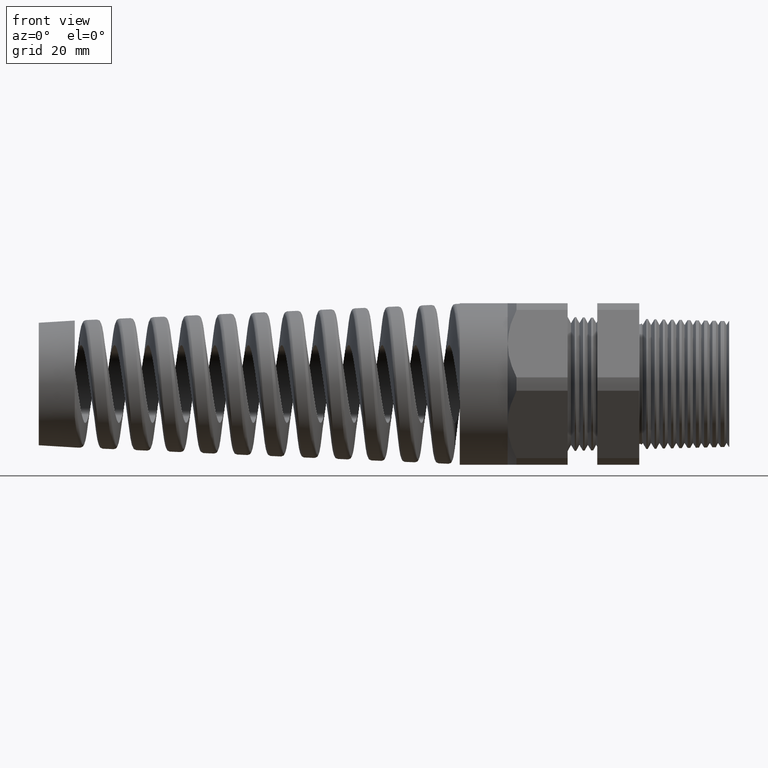
[diagram: clean part render]
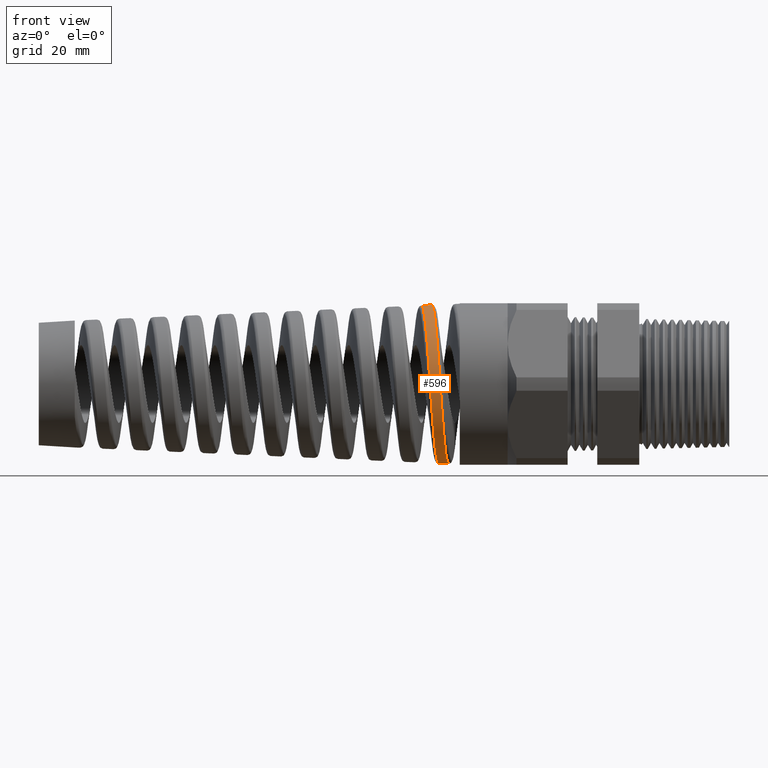
[diagram: same view with one face highlighted and labeled with its STEP entity id]
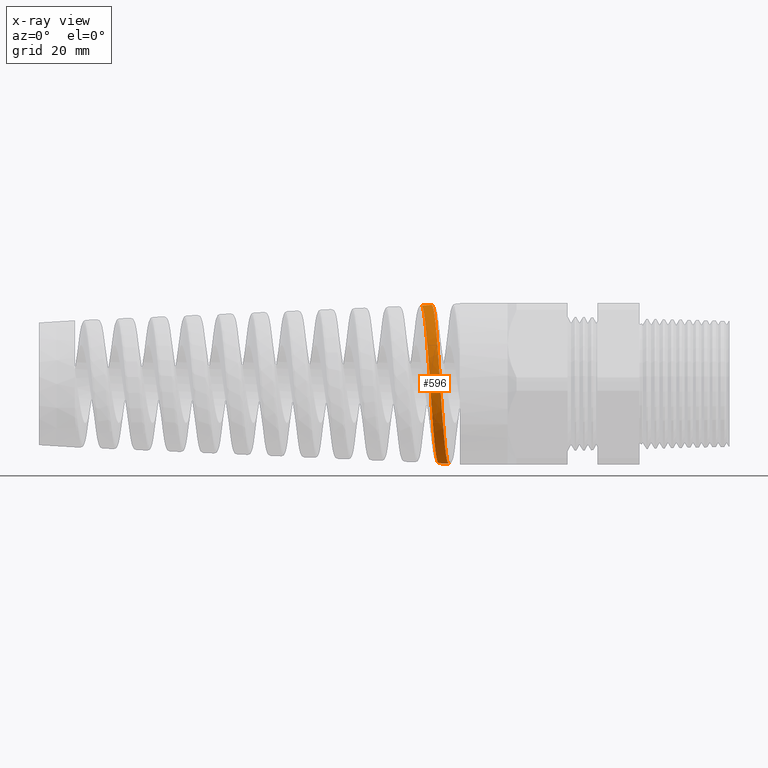
[diagram: x-ray of the same camera — body ghosted, the highlighted face saturated]
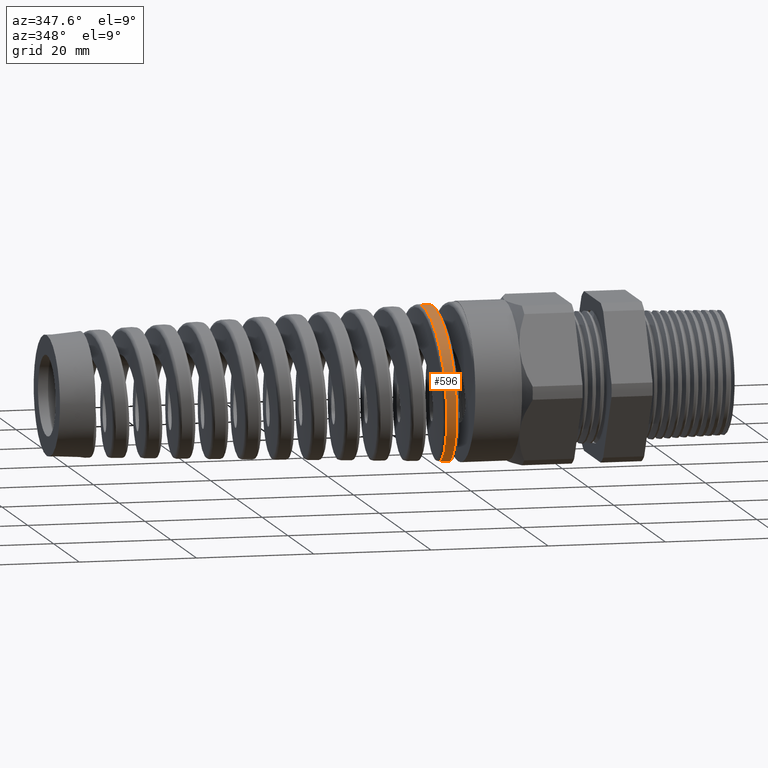
[diagram: same view with one face highlighted and labeled with its STEP entity id]
A machine part, front view. The second image highlights one B-rep face of the part: STEP entity #596.
The next image is the same camera in x-ray: the body ghosted, the highlighted face saturated — about 0% of this face is hidden behind the body in this view.
A second angle (auxiliary view) of the same face is appended — the face is thin or edge-on in the first view.
In plain terms, the highlighted conical surface has half-angle 2.5 deg.
Its self-contained STEP definition (entity closure, byte-faithful):
#589 = ORIENTED_EDGE ( 'NONE', *, *, #939, .T. ) ;
#591 = ORIENTED_EDGE ( 'NONE', *, *, #13241, .T. ) ;
#592 = EDGE_LOOP ( 'NONE', ( #595, #593, #591, #589 ) ) ;
#593 = ORIENTED_EDGE ( 'NONE', *, *, #594, .T. ) ;
#594 = EDGE_CURVE ( 'NONE', #7778, #13255, #1674, .T. ) ;
#595 = ORIENTED_EDGE ( 'NONE', *, *, #7902, .F. ) ;
#596 = ADVANCED_FACE ( 'NONE', ( #1675 ), #1700, .T. ) ;
#939 = EDGE_CURVE ( 'NONE', #13239, #6999, #17884, .T. ) ;
#1666 = CARTESIAN_POINT ( 'NONE',  ( -1.722592983473912400, -0.2139238387182114700, 0.4702579864811635700 ) ) ;
#1667 = CARTESIAN_POINT ( 'NONE',  ( -1.726037294512736700, -0.1669640885750318400, 0.4896261901162252700 ) ) ;
#1668 = CARTESIAN_POINT ( 'NONE',  ( -1.728314507461816900, -0.1346481827827056600, 0.4993850904316184400 ) ) ;
#1669 = CARTESIAN_POINT ( 'NONE',  ( -1.731777167149667100, -0.08464941721057936400, 0.5092429400751060700 ) ) ;
#1670 = CARTESIAN_POINT ( 'NONE',  ( -1.732944855199311200, -0.06764255167955547700, 0.5117288444558686400 ) ) ;
#1671 = CARTESIAN_POINT ( 'NONE',  ( -1.735260382962404700, -0.03378594452384209300, 0.5149719722363648200 ) ) ;
#1672 = CARTESIAN_POINT ( 'NONE',  ( -1.736412101383353100, -0.01688126453870676700, 0.5157485398768541000 ) ) ;
#1673 = CARTESIAN_POINT ( 'NONE',  ( -1.737562303999665900, 6.935350874948289400E-015, 0.5156983209460898100 ) ) ;
#1674 = B_SPLINE_CURVE_WITH_KNOTS ( 'NONE', 3,
 ( #1673, #1672, #1671, #1670, #1669, #1668, #1667, #1666, #1742, #1741, #1740, #1739, #1738, #1737, #1736, #1735, #1734, #1733, #1732, #1731, #1730, #1729, #1728, #1727, #1726, #1725, #1724, #1723, #1722, #1721, #1720, #1719, #1718, #1717, #1716, #1715, #1714, #1713, #1712, #1711, #1710, #1709, #1708, #1707, #1706, #1705, #1704, #1703 ),
 .UNSPECIFIED., .F., .F.,
 ( 4, 2, 2, 2, 2, 2, 2, 2, 2, 2, 2, 2, 2, 2, 2, 2, 2, 2, 2, 2, 2, 2, 2, 4 ),
 ( 0.7784240230110518500, 0.7797336503931809900, 0.7810432777753101300, 0.7836625325395684100, 0.7849721599216975500, 0.7862817873038267000, 0.7889010420680849800, 0.7902106694502141200, 0.7915202968323433700, 0.7928299242144725100, 0.7941395515966016600, 0.7967588063608599400, 0.7980684337429890800, 0.7993780611251182200, 0.8019973158893765100, 0.8033069432715056500, 0.8046165706536349000, 0.8072358254178931800, 0.8098550801821514700, 0.8111647075642806100, 0.8124743349464097500, 0.8150935897106681400, 0.8177128444749264300, 0.8203320992391847100 ),
 .UNSPECIFIED. ) ;
#1675 = FACE_OUTER_BOUND ( 'NONE', #592, .T. ) ;
#1696 = DIRECTION ( 'NONE',  ( 0.0000000000000000000, 0.0000000000000000000, -1.000000000000000000 ) ) ;
#1697 = DIRECTION ( 'NONE',  ( 1.000000000000000000, 0.0000000000000000000, 0.0000000000000000000 ) ) ;
#1698 = CARTESIAN_POINT ( 'NONE',  ( -1.409999999999999900, 0.0000000000000000000, 0.0000000000000000000 ) ) ;
#1699 = AXIS2_PLACEMENT_3D ( 'NONE', #1698, #1697, #1696 ) ;
#1700 = CONICAL_SURFACE ( 'NONE', #1699, 0.5299999999999999200, 0.04363323129985856300 ) ;
#1703 = CARTESIAN_POINT ( 'NONE',  ( -1.627386131749928100, 1.563865524316762000E-015, -0.5205087165125640300 ) ) ;
#1704 = CARTESIAN_POINT ( 'NONE',  ( -1.629676230863093900, -0.03402098196167265700, -0.5204087286259292400 ) ) ;
#1705 = CARTESIAN_POINT ( 'NONE',  ( -1.631943346546171000, -0.06761373352152706700, -0.5170058175692035000 ) ) ;
#1706 = CARTESIAN_POINT ( 'NONE',  ( -1.636513464939096000, -0.1339512655651189100, -0.5037023822791564200 ) ) ;
#1707 = CARTESIAN_POINT ( 'NONE',  ( -1.638833431703864600, -0.1669629965965004300, -0.4936373535988004000 ) ) ;
#1708 = CARTESIAN_POINT ( 'NONE',  ( -1.643392373716870500, -0.2294573033151903200, -0.4676503517703482500 ) ) ;
#1709 = CARTESIAN_POINT ( 'NONE',  ( -1.645653415508865300, -0.2592275384750709600, -0.4517265914706220000 ) ) ;
#1710 = CARTESIAN_POINT ( 'NONE',  ( -1.649092895533213100, -0.3016296480462324300, -0.4233818652329591200 ) ) ;
#1711 = CARTESIAN_POINT ( 'NONE',  ( -1.650251737673882100, -0.3154312099483523900, -0.4131378782356932000 ) ) ;
#1712 = CARTESIAN_POINT ( 'NONE',  ( -1.652548079228678000, -0.3416898479354515400, -0.3915656264741095800 ) ) ;
#1713 = CARTESIAN_POINT ( 'NONE',  ( -1.653690845984876000, -0.3542157095904564500, -0.3801988423909226600 ) ) ;
#1714 = CARTESIAN_POINT ( 'NONE',  ( -1.657117121693942400, -0.3900177325240377600, -0.3443913176565637200 ) ) ;
#1715 = CARTESIAN_POINT ( 'NONE',  ( -1.659401170423145500, -0.4115808137773185300, -0.3181927308551297200 ) ) ;
#1716 = CARTESIAN_POINT ( 'NONE',  ( -1.664015301422366000, -0.4495955141188238700, -0.2613429492694502900 ) ) ;
#1717 = CARTESIAN_POINT ( 'NONE',  ( -1.666284102801327100, -0.4655193565567151700, -0.2315089916569136000 ) ) ;
#1718 = CARTESIAN_POINT ( 'NONE',  ( -1.669706484254078700, -0.4849442630160236700, -0.1847251428075126500 ) ) ;
#1719 = CARTESIAN_POINT ( 'NONE',  ( -1.670850286952198600, -0.4906703514680056400, -0.1687892292516941800 ) ) ;
#1720 = CARTESIAN_POINT ( 'NONE',  ( -1.673155153866892500, -0.5005870232670369700, -0.1362184332856884200 ) ) ;
#1721 = CARTESIAN_POINT ( 'NONE',  ( -1.674317672832473100, -0.5047710309584833000, -0.1195602275153976600 ) ) ;
#1722 = CARTESIAN_POINT ( 'NONE',  ( -1.677768922143178900, -0.5147312324925317200, -0.06962830771451104800 ) ) ;
#1723 = CARTESIAN_POINT ( 'NONE',  ( -1.680044127117704200, -0.5180641475945252400, -0.03604009421066983000 ) ) ;
#1724 = CARTESIAN_POINT ( 'NONE',  ( -1.683479017987300300, -0.5181256565375845800, 0.01478642091440800200 ) ) ;
#1725 = CARTESIAN_POINT ( 'NONE',  ( -1.684633676613909400, -0.5173089205460761300, 0.03188020995763349300 ) ) ;
#1726 = CARTESIAN_POINT ( 'NONE',  ( -1.686940716142296200, -0.5139881738855099900, 0.06585346416918858000 ) ) ;
#1727 = CARTESIAN_POINT ( 'NONE',  ( -1.688086255710673100, -0.5115026394682251600, 0.08263186204734542000 ) ) ;
#1728 = CARTESIAN_POINT ( 'NONE',  ( -1.691517737676643300, -0.5016428050784782500, 0.1323593294096142000 ) ) ;
#1729 = CARTESIAN_POINT ( 'NONE',  ( -1.693799080911002400, -0.4918881041078065300, 0.1647064115569146500 ) ) ;
#1730 = CARTESIAN_POINT ( 'NONE',  ( -1.697272492698430200, -0.4723519027608122900, 0.2119825337475498800 ) ) ;
#1731 = CARTESIAN_POINT ( 'NONE',  ( -1.698435192405543000, -0.4650268841669020800, 0.2274796680844092500 ) ) ;
#1732 = CARTESIAN_POINT ( 'NONE',  ( -1.700734235806596400, -0.4490510917921451400, 0.2573834814440284500 ) ) ;
#1733 = CARTESIAN_POINT ( 'NONE',  ( -1.701876711208885700, -0.4403672487264463900, 0.2718743325484428400 ) ) ;
#1734 = CARTESIAN_POINT ( 'NONE',  ( -1.704161461104001900, -0.4216262606397833700, 0.2999451209900673200 ) ) ;
#1735 = CARTESIAN_POINT ( 'NONE',  ( -1.705303621857871700, -0.4115691237540737300, 0.3135250730148672600 ) ) ;
#1736 = CARTESIAN_POINT ( 'NONE',  ( -1.707600536157857900, -0.3900604985709306100, 0.3397590557809860300 ) ) ;
#1737 = CARTESIAN_POINT ( 'NONE',  ( -1.708761791125533500, -0.3785392553858045200, 0.3524791616650036500 ) ) ;
#1738 = CARTESIAN_POINT ( 'NONE',  ( -1.712227934749914100, -0.3423889314343729300, 0.3886098992227271500 ) ) ;
#1739 = CARTESIAN_POINT ( 'NONE',  ( -1.714513206431566900, -0.3162560191602098400, 0.4100108338846432100 ) ) ;
#1740 = CARTESIAN_POINT ( 'NONE',  ( -1.717962681895850900, -0.2740796451434017200, 0.4381714325051962500 ) ) ;
#1741 = CARTESIAN_POINT ( 'NONE',  ( -1.719115837775997000, -0.2595211334095421900, 0.4468968279397476700 ) ) ;
#1742 = CARTESIAN_POINT ( 'NONE',  ( -1.721436267604481700, -0.2293724656432885600, 0.4629812302570673900 ) ) ;
#5913 = CARTESIAN_POINT ( 'NONE',  ( -1.671487147655367700, -9.009907678674996900E-013, 0.5185832245749092400 ) ) ;
#6160 = CARTESIAN_POINT ( 'NONE',  ( -1.561664174598572700, 9.210666006910000400E-013, -0.5233781991315850100 ) ) ;
#6224 = DIRECTION ( 'NONE',  ( 0.9990482215818576900, 0.0000000000000000000, -0.04361938736533632600 ) ) ;
#6225 = VECTOR ( 'NONE', #6224, 39.37007874015748100 ) ;
#6226 = CARTESIAN_POINT ( 'NONE',  ( -1.409999999999999900, 0.0000000000000000000, -0.5299999999999999200 ) ) ;
#6227 = LINE ( 'NONE', #6226, #6225 ) ;
#6319 = CARTESIAN_POINT ( 'NONE',  ( -1.627386131749928100, 1.563865524316762000E-015, -0.5205087165125640300 ) ) ;
#6999 = VERTEX_POINT ( 'NONE', #5913 ) ;
#7778 = VERTEX_POINT ( 'NONE', #18245 ) ;
#7902 = EDGE_CURVE ( 'NONE', #7778, #6999, #18243, .T. ) ;
#13239 = VERTEX_POINT ( 'NONE', #6160 ) ;
#13241 = EDGE_CURVE ( 'NONE', #13255, #13239, #6227, .T. ) ;
#13255 = VERTEX_POINT ( 'NONE', #6319 ) ;
#17874 = CARTESIAN_POINT ( 'NONE',  ( -1.583303273194142800, -0.3032868684319640600, -0.4257280723663478500 ) ) ;
#17875 = CARTESIAN_POINT ( 'NONE',  ( -1.579886071247810700, -0.2607683709670982100, -0.4541530738246232800 ) ) ;
#17876 = CARTESIAN_POINT ( 'NONE',  ( -1.577626773677712500, -0.2308525849585015300, -0.4701759477456272100 ) ) ;
#17877 = CARTESIAN_POINT ( 'NONE',  ( -1.574200667460258000, -0.1836287305869543400, -0.4898196005918008500 ) ) ;
#17878 = CARTESIAN_POINT ( 'NONE',  ( -1.573046363620578300, -0.1674029878024393700, -0.4956558929616343700 ) ) ;
#17879 = CARTESIAN_POINT ( 'NONE',  ( -1.570750320246621800, -0.1346150568517882300, -0.5056502309508792400 ) ) ;
#17880 = CARTESIAN_POINT ( 'NONE',  ( -1.569611219953883000, -0.1180901721828888500, -0.5098086198773257300 ) ) ;
#17881 = CARTESIAN_POINT ( 'NONE',  ( -1.566207420537376600, -0.06813419722391637900, -0.5198352621724925400 ) ) ;
#17882 = CARTESIAN_POINT ( 'NONE',  ( -1.563953830797420300, -0.03432555894512710100, -0.5232782305830674400 ) ) ;
#17883 = CARTESIAN_POINT ( 'NONE',  ( -1.561664174598572700, 9.210666006910000400E-013, -0.5233781991315850100 ) ) ;
#17884 = B_SPLINE_CURVE_WITH_KNOTS ( 'NONE', 3,
 ( #17883, #17882, #17881, #17880, #17879, #17878, #17877, #17876, #17875, #17874, #17943, #17942, #17941, #17940, #17939, #17938, #17937, #17936, #17935, #17934, #17933, #17932, #17931, #17930, #17929, #17928, #17927, #17926, #17925, #17924, #17923, #17922, #17921, #17920, #17919, #17918, #17917, #17916, #17915, #17914, #17913, #17912, #17911, #17910, #17909, #17908, #17907, #17906, #17905 ),
 .UNSPECIFIED., .F., .F.,
 ( 4, 2, 2, 2, 2, 2, 2, 2, 2, 1, 2, 2, 2, 2, 2, 2, 2, 2, 2, 2, 2, 2, 2, 2, 4 ),
 ( 0.02840593383123696200, 0.03103339947261080800, 0.03234713229329773400, 0.03366086511398465300, 0.03628833075535850500, 0.03760206357604542500, 0.03891579639673235800, 0.04154326203810621000, 0.04285699485879312900, 0.04417072767948004900, 0.04548446050016696800, 0.04679819332085390100, 0.04942565896222773900, 0.05073939178291466500, 0.05205312460360158500, 0.05468059024497544400, 0.05599432306566236300, 0.05730805588634928200, 0.05993552152772312800, 0.06256298716909697300, 0.06387671998978389200, 0.06519045281047081100, 0.06781791845184465000, 0.06913165127253156900, 0.07044538409321847400 ),
 .UNSPECIFIED. ) ;
#17905 = CARTESIAN_POINT ( 'NONE',  ( -1.671487147655367700, -9.009907678674996900E-013, 0.5185832245749092400 ) ) ;
#17906 = CARTESIAN_POINT ( 'NONE',  ( -1.670340841219261700, -0.01698963464981139200, 0.5186332733947420800 ) ) ;
#17907 = CARTESIAN_POINT ( 'NONE',  ( -1.669193947454835600, -0.03402346255799118500, 0.5178505512999473900 ) ) ;
#17908 = CARTESIAN_POINT ( 'NONE',  ( -1.666884743637695000, -0.06818114817059993400, 0.5145704228644809600 ) ) ;
#17909 = CARTESIAN_POINT ( 'NONE',  ( -1.665728536077493600, -0.08521367151051313600, 0.5120725431249858500 ) ) ;
#17910 = CARTESIAN_POINT ( 'NONE',  ( -1.662290854050047200, -0.1353587353759280700, 0.5021794832013992700 ) ) ;
#17911 = CARTESIAN_POINT ( 'NONE',  ( -1.660017707202772900, -0.1678523019196781200, 0.4923805326020565500 ) ) ;
#17912 = CARTESIAN_POINT ( 'NONE',  ( -1.656566298065300600, -0.2151774849304916900, 0.4728578058046796800 ) ) ;
#17913 = CARTESIAN_POINT ( 'NONE',  ( -1.655402567162213000, -0.2307979229323229300, 0.4654919265060706900 ) ) ;
#17914 = CARTESIAN_POINT ( 'NONE',  ( -1.653093187880097200, -0.2609990330813905000, 0.4493713926657604300 ) ) ;
#17915 = CARTESIAN_POINT ( 'NONE',  ( -1.651946159032848400, -0.2756034297010237500, 0.4406190830484332800 ) ) ;
#17916 = CARTESIAN_POINT ( 'NONE',  ( -1.648516773939560100, -0.3179637828117275500, 0.4123369789038205400 ) ) ;
#17917 = CARTESIAN_POINT ( 'NONE',  ( -1.646246124897728000, -0.3442810317503510200, 0.3908016905532807900 ) ) ;
#17918 = CARTESIAN_POINT ( 'NONE',  ( -1.641627928410941200, -0.3929175209954619000, 0.3421707553239606300 ) ) ;
#17919 = CARTESIAN_POINT ( 'NONE',  ( -1.639347256575244700, -0.4145139536706922100, 0.3157789249159075900 ) ) ;
#17920 = CARTESIAN_POINT ( 'NONE',  ( -1.635919974664799900, -0.4427896588440889400, 0.2734354650907988000 ) ) ;
#17921 = CARTESIAN_POINT ( 'NONE',  ( -1.634775622019199100, -0.4515355735051830300, 0.2588460012208674300 ) ) ;
#17922 = CARTESIAN_POINT ( 'NONE',  ( -1.632473927479622700, -0.4676402826836147400, 0.2286979534674089500 ) ) ;
#17923 = CARTESIAN_POINT ( 'NONE',  ( -1.631311757349018800, -0.4750202044982080900, 0.2130698508011062100 ) ) ;
#17924 = CARTESIAN_POINT ( 'NONE',  ( -1.627867144999117100, -0.4945942132338703200, 0.1656868836156642200 ) ) ;
#17925 = CARTESIAN_POINT ( 'NONE',  ( -1.625604441418468300, -0.5044092048822925700, 0.1331920376751080900 ) ) ;
#17926 = CARTESIAN_POINT ( 'NONE',  ( -1.622182035000465200, -0.5143420151166860900, 0.08311327277239842500 ) ) ;
#17927 = CARTESIAN_POINT ( 'NONE',  ( -1.621034364022450300, -0.5168522396115116100, 0.06616258002554172000 ) ) ;
#17928 = CARTESIAN_POINT ( 'NONE',  ( -1.618726600809242200, -0.5201910060647542100, 0.03193743623016062600 ) ) ;
#17929 = CARTESIAN_POINT ( 'NONE',  ( -1.617581079757472600, -0.5210017566812712400, 0.01488047587397190400 ) ) ;
#17930 = CARTESIAN_POINT ( 'NONE',  ( -1.614153078319478400, -0.5209436303860411900, -0.03612804860046883000 ) ) ;
#17931 = CARTESIAN_POINT ( 'NONE',  ( -1.611878518809841700, -0.5176077161444201400, -0.06991873988405215800 ) ) ;
#17932 = CARTESIAN_POINT ( 'NONE',  ( -1.608435354919395300, -0.5075615772729852300, -0.1202727628179043600 ) ) ;
#17933 = CARTESIAN_POINT ( 'NONE',  ( -1.607280274752801200, -0.5033488374788689400, -0.1370224389131747500 ) ) ;
#17934 = CARTESIAN_POINT ( 'NONE',  ( -1.604995840460445000, -0.4934061396577446600, -0.1696749805441474200 ) ) ;
#17935 = CARTESIAN_POINT ( 'NONE',  ( -1.602724386106714900, -0.4819165859347363500, -0.2016686849367425000 ) ) ;
#17936 = CARTESIAN_POINT ( 'NONE',  ( -1.600453327087207700, -0.4673874812831539400, -0.2323659462256736600 ) ) ;
#17937 = CARTESIAN_POINT ( 'NONE',  ( -1.598170704941727300, -0.4513219817612144600, -0.2624070368999230100 ) ) ;
#17938 = CARTESIAN_POINT ( 'NONE',  ( -1.597018582051523000, -0.4424786621506270300, -0.2771616027119808700 ) ) ;
#17939 = CARTESIAN_POINT ( 'NONE',  ( -1.593563815303268700, -0.4138511309131625600, -0.3199599132587691000 ) ) ;
#17940 = CARTESIAN_POINT ( 'NONE',  ( -1.591291564045241400, -0.3922617576709194200, -0.3462036372362906600 ) ) ;
#17941 = CARTESIAN_POINT ( 'NONE',  ( -1.587881286948204600, -0.3562409602499421700, -0.3822416934245890200 ) ) ;
#17942 = CARTESIAN_POINT ( 'NONE',  ( -1.586743688956454300, -0.3436235710695552100, -0.3936957777775480500 ) ) ;
#17943 = CARTESIAN_POINT ( 'NONE',  ( -1.584453428593038700, -0.3171351102567324700, -0.4154555418062939000 ) ) ;
#18240 = DIRECTION ( 'NONE',  ( 0.9990482215818576900, 5.341834311772763300E-018, 0.04361938736533632600 ) ) ;
#18241 = VECTOR ( 'NONE', #18240, 39.37007874015748100 ) ;
#18242 = CARTESIAN_POINT ( 'NONE',  ( -1.409999999999999900, 6.490628035480971200E-017, 0.5299999999999999200 ) ) ;
#18243 = LINE ( 'NONE', #18242, #18241 ) ;
#18245 = CARTESIAN_POINT ( 'NONE',  ( -1.737562303999665900, 6.935350874948289400E-015, 0.5156983209460898100 ) ) ;